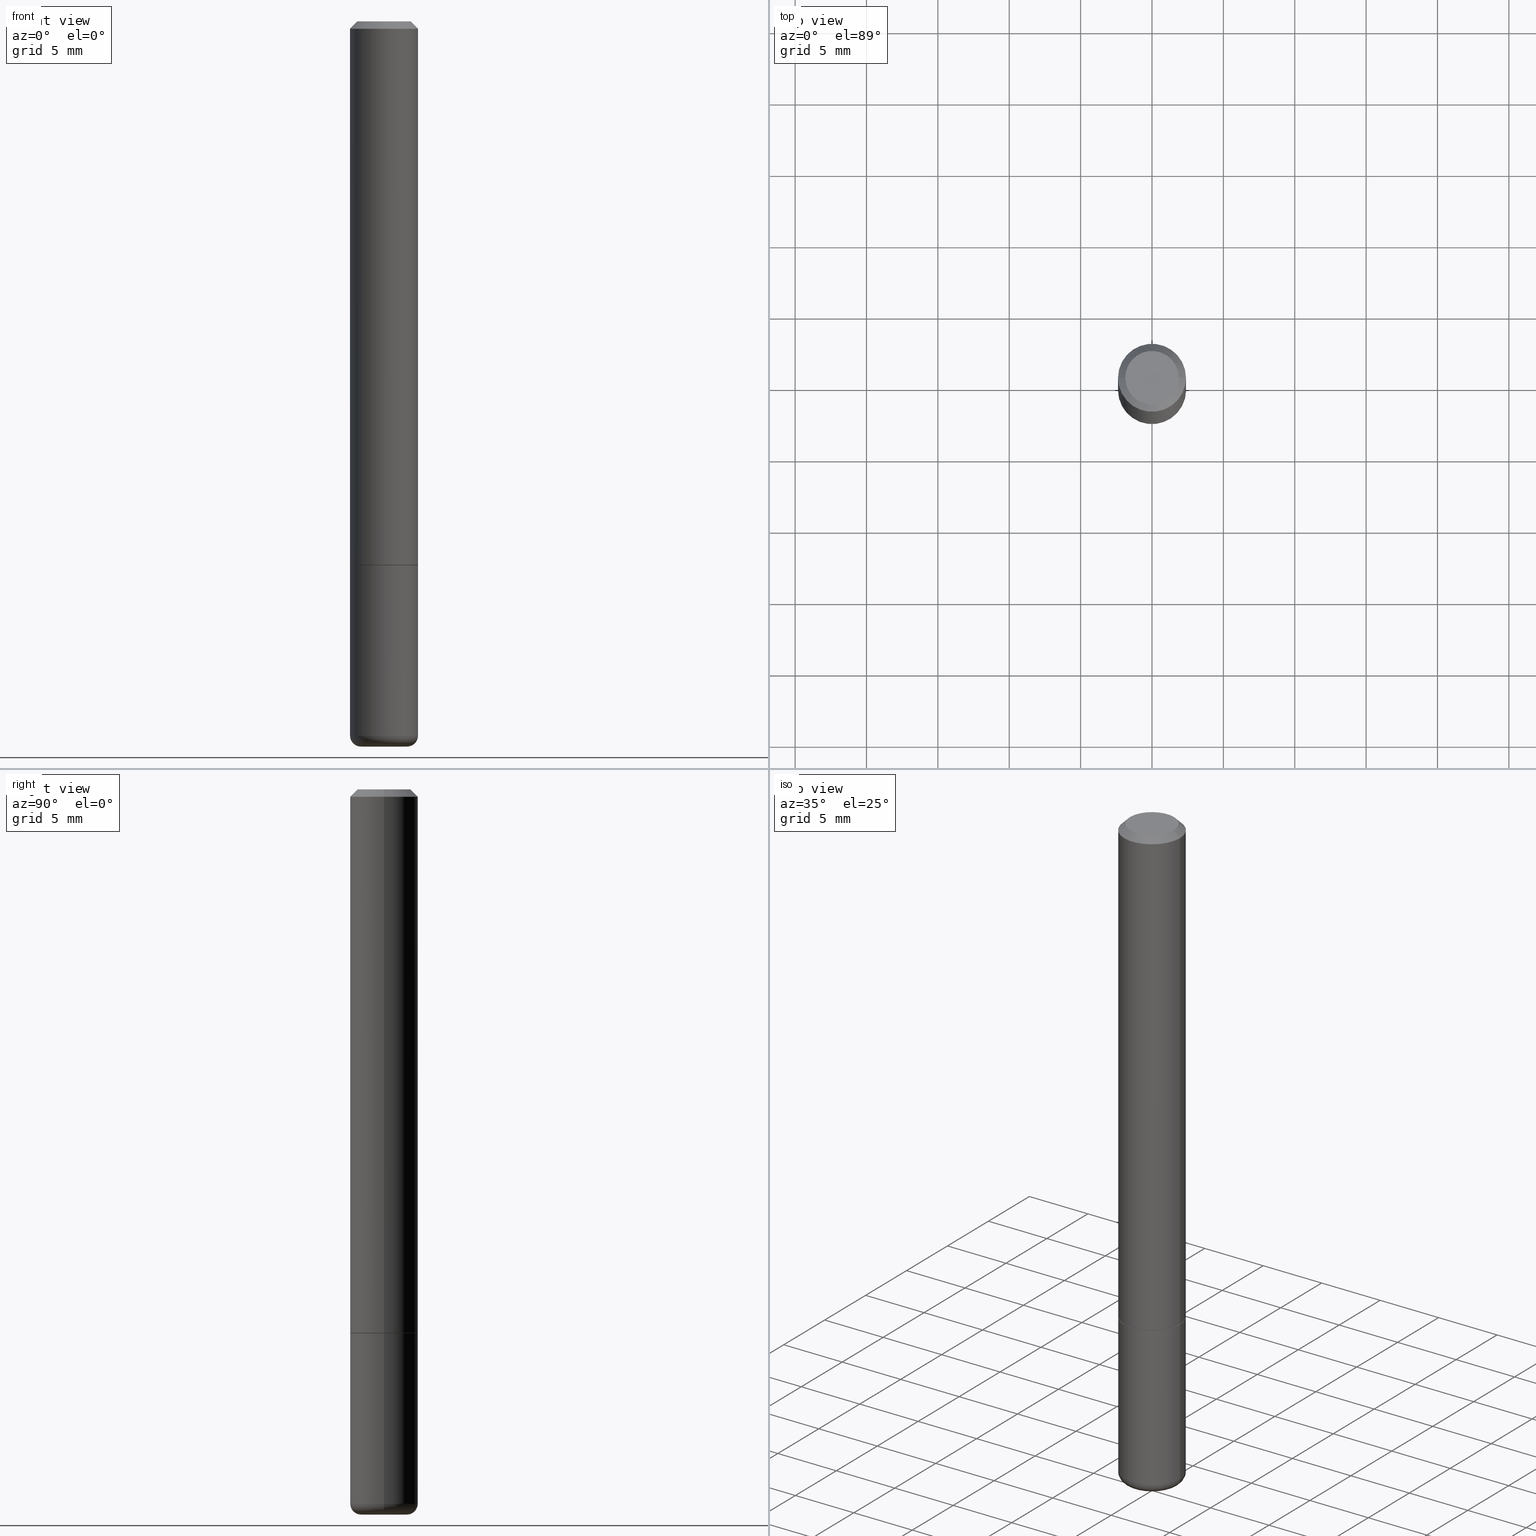
[diagram: canonical four-view strip — front | top / right | iso, engineering-drawing reading convention]
A machine part, canonical four-view strip (front | top / right | iso — engineering-drawing reading convention). The complete STEP part file that produces these views, byte-faithful:
ISO-10303-21;
HEADER;
FILE_DESCRIPTION (( 'STEP AP203' ),
    '1' );
FILE_NAME ('38785.STEP',
    '2024-03-03T12:43:36',
    ( '' ),
    ( '' ),
    'SwSTEP 2.0',
    'SolidWorks 2023',
    '' );
FILE_SCHEMA (( 'CONFIG_CONTROL_DESIGN' ));
ENDSEC;

DATA;
#1 = AXIS2_PLACEMENT_3D ( 'NONE', #287, #105, #201 ) ;
#2 = ORIENTED_EDGE ( 'NONE', *, *, #139, .F. ) ;
#3 = DIRECTION ( 'NONE',  ( -1.000000000000000000, 7.105427357600993970E-15, 0.000000000000000000 ) ) ;
#4 = LINE ( 'NONE', #136, #251 ) ;
#5 = ADVANCED_FACE ( 'NONE', ( #322 ), #161, .F. ) ;
#6 = AXIS2_PLACEMENT_3D ( 'NONE', #22, #363, #183 ) ;
#7 = CARTESIAN_POINT ( 'NONE',  ( -0.06375000000000000111, -6.371038053192565679E-15, -1.999999999999999778 ) ) ;
#8 = SECURITY_CLASSIFICATION ( '', '', #361 ) ;
#9 = CARTESIAN_POINT ( 'NONE',  ( 4.890937612370276662E-31, -6.982962677686296539E-17, -0.02000000000000001776 ) ) ;
#10 = ADVANCED_FACE ( 'NONE', ( #97 ), #396, .T. ) ;
#11 = CARTESIAN_POINT ( 'NONE',  ( 3.668203209277704335E-29, -5.237222008264717388E-15, -1.499999999999999778 ) ) ;
#12 = DIRECTION ( 'NONE',  ( 0.000000000000000000, 0.000000000000000000, 1.000000000000000000 ) ) ;
#13 = CIRCLE ( 'NONE', #49, 0.09375000000000020817 ) ;
#14 = CONICAL_SURFACE ( 'NONE', #78, 0.09274999999999998523, 0.7853981633975251064 ) ;
#15 = DIRECTION ( 'NONE',  ( -2.445468806185136597E-29, 3.491481338843145583E-15, 1.000000000000000000 ) ) ;
#16 =( NAMED_UNIT ( * ) PLANE_ANGLE_UNIT ( ) SI_UNIT ( $, .RADIAN. ) );
#17 = PERSON_AND_ORGANIZATION ( #314, #250 ) ;
#18 = FACE_OUTER_BOUND ( 'NONE', #135, .T. ) ;
#19 = CC_DESIGN_APPROVAL ( #406, ( #41 ) ) ;
#20 = DIRECTION ( 'NONE',  ( 0.7071067811865465735, -7.319954787623252890E-15, -0.7071067811865484609 ) ) ;
#21 = DIRECTION ( 'NONE',  ( 1.000000000000000000, -6.982962677686261189E-15, 0.000000000000000000 ) ) ;
#22 = CARTESIAN_POINT ( 'NONE',  ( 4.817573548184719118E-29, -6.878218237520997007E-15, -1.969999999999999973 ) ) ;
#23 = ORIENTED_EDGE ( 'NONE', *, *, #331, .F. ) ;
#24 = VERTEX_POINT ( 'NONE', #102 ) ;
#25 = CARTESIAN_POINT ( 'NONE',  ( 0.09375000000000020817, -5.888383277958964251E-15, -1.498999999999999666 ) ) ;
#26 = CIRCLE ( 'NONE', #209, 0.02999999999999984970 ) ;
#27 = ORIENTED_EDGE ( 'NONE', *, *, #351, .F. ) ;
#28 = ORIENTED_EDGE ( 'NONE', *, *, #298, .F. ) ;
#29 = DATE_AND_TIME ( #342, #85 ) ;
#30 = EDGE_LOOP ( 'NONE', ( #131, #123, #162, #380 ) ) ;
#31 = ORIENTED_EDGE ( 'NONE', *, *, #385, .F. ) ;
#32 = PERSON_AND_ORGANIZATION ( #314, #250 ) ;
#33 = ORIENTED_EDGE ( 'NONE', *, *, #374, .T. ) ;
#34 = FACE_OUTER_BOUND ( 'NONE', #130, .T. ) ;
#35 = APPROVAL_DATE_TIME ( #134, #224 ) ;
#36 = AXIS2_PLACEMENT_3D ( 'NONE', #91, #238, #367 ) ;
#37 = ORIENTED_EDGE ( 'NONE', *, *, #374, .F. ) ;
#38 = CC_DESIGN_APPROVAL ( #266, ( #8 ) ) ;
#39 = DIRECTION ( 'NONE',  ( -0.7071067811865465735, 2.468850131082246805E-15, -0.7071067811865484609 ) ) ;
#40 = PERSON_AND_ORGANIZATION ( #314, #250 ) ;
#41 = PRODUCT_DEFINITION ( 'UNKNOWN', '', #180, #390 ) ;
#42 = CALENDAR_DATE ( 2024, 3, 3 ) ;
#43 = COORDINATED_UNIVERSAL_TIME_OFFSET ( 5, 0, .BEHIND. ) ;
#44 = CARTESIAN_POINT ( 'NONE',  ( -0.09375000000000001388, 6.661338147750940229E-16, -4.611501647113973995E-30 ) ) ;
#45 = EDGE_CURVE ( 'NONE', #196, #249, #100, .T. ) ;
#46 = APPROVAL_STATUS ( 'not_yet_approved' ) ;
#47 = ORIENTED_EDGE ( 'NONE', *, *, #418, .T. ) ;
#48 = DIRECTION ( 'NONE',  ( 1.000000000000000000, -6.982962677686265922E-15, 4.878439923190939118E-29 ) ) ;
#49 = AXIS2_PLACEMENT_3D ( 'NONE', #411, #51, #373 ) ;
#50 = CIRCLE ( 'NONE', #101, 0.09274999999999998523 ) ;
#51 = DIRECTION ( 'NONE',  ( -2.445468806185136597E-29, 3.491481338843145583E-15, 1.000000000000000000 ) ) ;
#52 = EDGE_LOOP ( 'NONE', ( #284, #103 ) ) ;
#53 = CARTESIAN_POINT ( 'NONE',  ( -0.09274999999999998523, -4.572895166499002070E-15, -1.499999999999999778 ) ) ;
#54 = DIRECTION ( 'NONE',  ( 1.000000000000000000, -6.982962677686261189E-15, 0.000000000000000000 ) ) ;
#55 = ORIENTED_EDGE ( 'NONE', *, *, #184, .F. ) ;
#56 = LENGTH_MEASURE_WITH_UNIT ( LENGTH_MEASURE( 0.02539999999999999897 ), #399 );
#57 = DIRECTION ( 'NONE',  ( -2.445468806185136597E-29, 3.491481338843145583E-15, 1.000000000000000000 ) ) ;
#58 = VERTEX_POINT ( 'NONE', #317 ) ;
#59 = CC_DESIGN_PERSON_AND_ORGANIZATION_ASSIGNMENT ( #32, #372, ( #41 ) ) ;
#60 = CARTESIAN_POINT ( 'NONE',  ( 0.000000000000000000, 0.000000000000000000, 0.000000000000000000 ) ) ;
#61 = ADVANCED_FACE ( 'NONE', ( #34 ), #232, .T. ) ;
#62 = CIRCLE ( 'NONE', #116, 0.09375000000000001388 ) ;
#63 = ORIENTED_EDGE ( 'NONE', *, *, #298, .T. ) ;
#64 = CARTESIAN_POINT ( 'NONE',  ( -0.09274999999999998523, -4.578193620847224472E-15, -1.499999999999999778 ) ) ;
#65 = DIRECTION ( 'NONE',  ( -2.445468806185136597E-29, 3.491481338843145583E-15, 1.000000000000000000 ) ) ;
#66 = EDGE_CURVE ( 'NONE', #249, #196, #376, .T. ) ;
#67 = DIRECTION ( 'NONE',  ( -2.445468806185136597E-29, 3.491481338843145583E-15, 1.000000000000000000 ) ) ;
#68 = ORIENTED_EDGE ( 'NONE', *, *, #294, .F. ) ;
#69 = EDGE_CURVE ( 'NONE', #338, #249, #292, .T. ) ;
#70 = CONICAL_SURFACE ( 'NONE', #125, 0.09274999999999998523, 0.7853981633975251064 ) ;
#71 = CIRCLE ( 'NONE', #112, 0.09375000000000001388 ) ;
#72 = FACE_OUTER_BOUND ( 'NONE', #128, .T. ) ;
#73 = EDGE_LOOP ( 'NONE', ( #382, #163, #47, #304 ) ) ;
#74 = DIRECTION ( 'NONE',  ( -1.000000000000000000, 6.982962677686265922E-15, -4.876176775795935793E-29 ) ) ;
#75 = DIRECTION ( 'NONE',  ( -2.445468806185136597E-29, 3.491481338843145583E-15, 1.000000000000000000 ) ) ;
#76 = CONICAL_SURFACE ( 'NONE', #215, 0.09375000000000001388, 0.7853981633974469467 ) ;
#77 = CARTESIAN_POINT ( 'NONE',  ( -0.09375000000000001388, 5.848231242562245017E-16, -0.02000000000000001776 ) ) ;
#78 = AXIS2_PLACEMENT_3D ( 'NONE', #391, #205, #108 ) ;
#79 = DIRECTION ( 'NONE',  ( -2.445468806185136597E-29, 3.491481338843145583E-15, 1.000000000000000000 ) ) ;
#80 = ADVANCED_FACE ( 'NONE', ( #208 ), #76, .T. ) ;
#81 = CARTESIAN_POINT ( 'NONE',  ( 4.890937612370272633E-29, -6.982962677686290376E-15, -1.999999999999999778 ) ) ;
#82 = EDGE_CURVE ( 'NONE', #409, #218, #173, .T. ) ;
#83 = LINE ( 'NONE', #330, #309 ) ;
#84 = VECTOR ( 'NONE', #332, 39.37007874015748143 ) ;
#85 = LOCAL_TIME ( 7, 43, 36.00000000000000000, #347 ) ;
#86 = LINE ( 'NONE', #64, #359 ) ;
#87 = EDGE_LOOP ( 'NONE', ( #256, #95 ) ) ;
#88 = DIRECTION ( 'NONE',  ( 1.000000000000000000, -6.982962677686260400E-15, 0.000000000000000000 ) ) ;
#89 = CC_DESIGN_PERSON_AND_ORGANIZATION_ASSIGNMENT ( #124, #94, ( #415 ) ) ;
#90 = DIRECTION ( 'NONE',  ( -2.445468806185136597E-29, 3.491481338843145583E-15, 1.000000000000000000 ) ) ;
#91 = CARTESIAN_POINT ( 'NONE',  ( 3.668203209277704335E-29, -5.237222008264717388E-15, -1.499999999999999778 ) ) ;
#92 = AXIS2_PLACEMENT_3D ( 'NONE', #11, #327, #147 ) ;
#93 = CIRCLE ( 'NONE', #348, 0.07375000000000006550 ) ;
#94 = PERSON_AND_ORGANIZATION_ROLE ( 'design_owner' ) ;
#95 = ORIENTED_EDGE ( 'NONE', *, *, #146, .F. ) ;
#96 = ORIENTED_EDGE ( 'NONE', *, *, #247, .T. ) ;
#97 = FACE_OUTER_BOUND ( 'NONE', #129, .T. ) ;
#98 = APPROVAL_STATUS ( 'not_yet_approved' ) ;
#99 = ORIENTED_EDGE ( 'NONE', *, *, #45, .T. ) ;
#100 = CIRCLE ( 'NONE', #203, 0.09375000000000001388 ) ;
#101 = AXIS2_PLACEMENT_3D ( 'NONE', #261, #142, #138 ) ;
#102 = CARTESIAN_POINT ( 'NONE',  ( -0.09375000000000001388, 5.848231242562245017E-16, -0.02000000000000001776 ) ) ;
#103 = ORIENTED_EDGE ( 'NONE', *, *, #400, .T. ) ;
#104 = PRODUCT_DEFINITION_SHAPE ( 'NONE', 'NONE',  #41 ) ;
#105 = DIRECTION ( 'NONE',  ( 2.438088387897960049E-29, -3.491481338843145188E-15, -1.000000000000000000 ) ) ;
#106 = CIRCLE ( 'NONE', #355, 0.09375000000000001388 ) ;
#107 = APPROVAL_STATUS ( 'not_yet_approved' ) ;
#108 = DIRECTION ( 'NONE',  ( 1.000000000000000000, -6.982962677686262766E-15, 0.000000000000000000 ) ) ;
#109 = DIRECTION ( 'NONE',  ( 2.438088387897960049E-29, -3.491481338843145188E-15, -1.000000000000000000 ) ) ;
#110 = CC_DESIGN_PERSON_AND_ORGANIZATION_ASSIGNMENT ( #17, #265, ( #180 ) ) ;
#111 = FACE_OUTER_BOUND ( 'NONE', #30, .T. ) ;
#112 = AXIS2_PLACEMENT_3D ( 'NONE', #187, #303, #21 ) ;
#113 = CARTESIAN_POINT ( 'NONE',  ( 4.890937612370276662E-31, -6.982962677686296539E-17, -0.02000000000000001776 ) ) ;
#114 = DIRECTION ( 'NONE',  ( 1.000000000000000000, -6.982962677686262766E-15, 0.000000000000000000 ) ) ;
#115 = COORDINATED_UNIVERSAL_TIME_OFFSET ( 5, 0, .BEHIND. ) ;
#116 = AXIS2_PLACEMENT_3D ( 'NONE', #188, #57, #54 ) ;
#117 = CARTESIAN_POINT ( 'NONE',  ( -0.09375000000000011102, 6.661338147750947131E-16, -4.611501647113979600E-30 ) ) ;
#118 = ADVANCED_FACE ( 'NONE', ( #120 ), #70, .T. ) ;
#119 = CARTESIAN_POINT ( 'NONE',  ( 4.890937612370272633E-29, -6.982962677686290376E-15, -1.999999999999999778 ) ) ;
#120 = FACE_OUTER_BOUND ( 'NONE', #73, .T. ) ;
#121 = CYLINDRICAL_SURFACE ( 'NONE', #200, 0.09375000000000011102 ) ;
#122 = CARTESIAN_POINT ( 'NONE',  ( -0.07375000000000006550, 5.499083108677936415E-16, -2.134256245050577883E-17 ) ) ;
#123 = ORIENTED_EDGE ( 'NONE', *, *, #192, .T. ) ;
#124 = PERSON_AND_ORGANIZATION ( #314, #250 ) ;
#125 = AXIS2_PLACEMENT_3D ( 'NONE', #150, #236, #114 ) ;
#126 = CIRCLE ( 'NONE', #282, 0.02999999999999984970 ) ;
#127 = VERTEX_POINT ( 'NONE', #53 ) ;
#128 = EDGE_LOOP ( 'NONE', ( #253, #99 ) ) ;
#129 = EDGE_LOOP ( 'NONE', ( #28, #383, #33, #68 ) ) ;
#130 = EDGE_LOOP ( 'NONE', ( #308, #168, #379, #381 ) ) ;
#131 = ORIENTED_EDGE ( 'NONE', *, *, #184, .T. ) ;
#132 = CIRCLE ( 'NONE', #36, 0.09274999999999998523 ) ;
#133 = VECTOR ( 'NONE', #176, 39.37007874015748143 ) ;
#134 = DATE_AND_TIME ( #174, #222 ) ;
#135 = EDGE_LOOP ( 'NONE', ( #283, #375, #96, #2 ) ) ;
#136 = CARTESIAN_POINT ( 'NONE',  ( 0.09375000000000001388, -7.130013140679441850E-16, -0.02000000000000001776 ) ) ;
#137 = CARTESIAN_POINT ( 'NONE',  ( 3.665757740471518732E-29, -5.233730526925875170E-15, -1.498999999999999666 ) ) ;
#138 = DIRECTION ( 'NONE',  ( 1.000000000000000000, -6.982962677686262766E-15, 0.000000000000000000 ) ) ;
#139 = EDGE_CURVE ( 'NONE', #24, #306, #307, .T. ) ;
#140 = CONICAL_SURFACE ( 'NONE', #364, 0.09375000000000001388, 0.7853981633974469467 ) ;
#141 = CIRCLE ( 'NONE', #365, 0.07375000000000006550 ) ;
#142 = DIRECTION ( 'NONE',  ( -2.445468806185136597E-29, 3.491481338843145583E-15, 1.000000000000000000 ) ) ;
#143 = CC_DESIGN_PERSON_AND_ORGANIZATION_ASSIGNMENT ( #394, #401, ( #8 ) ) ;
#144 = LINE ( 'NONE', #77, #404 ) ;
#145 = PERSON_AND_ORGANIZATION_ROLE ( 'creator' ) ;
#146 = EDGE_CURVE ( 'NONE', #305, #58, #301, .T. ) ;
#147 = DIRECTION ( 'NONE',  ( 1.000000000000000000, -6.982962677686261189E-15, 0.000000000000000000 ) ) ;
#148 = PLANE ( 'NONE',  #175 ) ;
#149 = DIRECTION ( 'NONE',  ( 1.000000000000000000, -6.982962677686271444E-15, 0.000000000000000000 ) ) ;
#150 = CARTESIAN_POINT ( 'NONE',  ( 3.668203209277704335E-29, -5.237222008264717388E-15, -1.499999999999999778 ) ) ;
#151 = CARTESIAN_POINT ( 'NONE',  ( 0.06375000000000000111, -7.323382108223495405E-15, -1.969999999999999973 ) ) ;
#152 = CARTESIAN_POINT ( 'NONE',  ( -0.09374999999999991673, -6.212084422745903871E-15, -1.969999999999999973 ) ) ;
#153 = CARTESIAN_POINT ( 'NONE',  ( -0.09375000000000001388, -5.391586308117763273E-15, -1.499999999999999778 ) ) ;
#154 = DIRECTION ( 'NONE',  ( 1.000000000000000000, -6.982962677686265922E-15, 4.878439923190939118E-29 ) ) ;
#155 = PRODUCT_RELATED_PRODUCT_CATEGORY ( 'detail', '', ( #415 ) ) ;
#156 = DIRECTION ( 'NONE',  ( 1.000000000000000000, -6.982962677686260400E-15, 0.000000000000000000 ) ) ;
#157 = CARTESIAN_POINT ( 'NONE',  ( -0.06375000000000000111, -6.425247243473933328E-15, -1.969999999999999973 ) ) ;
#158 = EDGE_CURVE ( 'NONE', #409, #24, #248, .T. ) ;
#159 = CC_DESIGN_DATE_AND_TIME_ASSIGNMENT ( #405, #245, ( #8 ) ) ;
#160 = VECTOR ( 'NONE', #334, 39.37007874015748143 ) ;
#161 = PLANE ( 'NONE',  #259 ) ;
#162 = ORIENTED_EDGE ( 'NONE', *, *, #171, .F. ) ;
#163 = ORIENTED_EDGE ( 'NONE', *, *, #310, .T. ) ;
#164 = APPROVAL_DATE_TIME ( #29, #406 ) ;
#165 = ORIENTED_EDGE ( 'NONE', *, *, #45, .F. ) ;
#166 = CARTESIAN_POINT ( 'NONE',  ( 3.668203209277704335E-29, -5.237222008264717388E-15, -1.499999999999999778 ) ) ;
#167 = EDGE_CURVE ( 'NONE', #306, #24, #106, .T. ) ;
#168 = ORIENTED_EDGE ( 'NONE', *, *, #331, .T. ) ;
#169 = PERSON_AND_ORGANIZATION ( #314, #250 ) ;
#170 = PLANE ( 'NONE',  #1 ) ;
#171 = EDGE_CURVE ( 'NONE', #218, #409, #13, .T. ) ;
#172 = FACE_OUTER_BOUND ( 'NONE', #297, .T. ) ;
#173 = CIRCLE ( 'NONE', #229, 0.09375000000000020817 ) ;
#174 = CALENDAR_DATE ( 2024, 3, 3 ) ;
#175 = AXIS2_PLACEMENT_3D ( 'NONE', #360, #362, #242 ) ;
#176 = DIRECTION ( 'NONE',  ( -2.445468806185136877E-29, 3.491481338843145188E-15, 1.000000000000000000 ) ) ;
#177 = APPROVAL_ROLE ( '' ) ;
#178 = DATE_AND_TIME ( #42, #339 ) ;
#179 = CLOSED_SHELL ( 'NONE', ( #61, #233, #325, #341, #10, #393 ) ) ;
#180 = PRODUCT_DEFINITION_FORMATION_WITH_SPECIFIED_SOURCE ( 'ANY', '', #415, .NOT_KNOWN. ) ;
#181 = CARTESIAN_POINT ( 'NONE',  ( 5.219257071676098903E-46, -7.451715851902235727E-32, -2.134256245050205639E-17 ) ) ;
#182 = DIRECTION ( 'NONE',  ( -2.445468806185136597E-29, 3.491481338843145583E-15, 1.000000000000000000 ) ) ;
#183 = DIRECTION ( 'NONE',  ( 1.000000000000000000, -6.982962677686263555E-15, 4.883557194083111219E-29 ) ) ;
#184 = EDGE_CURVE ( 'NONE', #258, #127, #132, .T. ) ;
#185 = DIRECTION ( 'NONE',  ( -6.982962677686266711E-15, -1.000000000000000000, 3.491481338843145583E-15 ) ) ;
#186 = DIRECTION ( 'NONE',  ( -2.445468806185136597E-29, 3.491481338843145583E-15, 1.000000000000000000 ) ) ;
#187 = CARTESIAN_POINT ( 'NONE',  ( 4.817573548184719118E-29, -6.878218237520997007E-15, -1.969999999999999973 ) ) ;
#188 = CARTESIAN_POINT ( 'NONE',  ( 4.817573548184719118E-29, -6.878218237520997007E-15, -1.969999999999999973 ) ) ;
#189 = TOROIDAL_SURFACE ( 'NONE', #6, 0.06375000000000000111, 0.02999999999999984276 ) ;
#190 = APPROVAL_PERSON_ORGANIZATION ( #40, #224, #356 ) ;
#191 = DIRECTION ( 'NONE',  ( -2.438088387897960049E-29, 3.491481338843145188E-15, 1.000000000000000000 ) ) ;
#192 = EDGE_CURVE ( 'NONE', #127, #409, #86, .T. ) ;
#193 = ORIENTED_EDGE ( 'NONE', *, *, #315, .T. ) ;
#194 = DIMENSIONAL_EXPONENTS ( 1.000000000000000000, 0.000000000000000000, 0.000000000000000000, 0.000000000000000000, 0.000000000000000000, 0.000000000000000000, 0.000000000000000000 ) ;
#195 = DIRECTION ( 'NONE',  ( 7.105427357601001859E-15, 1.000000000000000000, -3.491481338843145583E-15 ) ) ;
#196 = VERTEX_POINT ( 'NONE', #153 ) ;
#197 = DIRECTION ( 'NONE',  ( 1.000000000000000000, -6.982962677686261189E-15, 0.000000000000000000 ) ) ;
#198 = APPLICATION_CONTEXT ( 'configuration controlled 3d designs of mechanical parts and assemblies' ) ;
#199 = ORIENTED_EDGE ( 'NONE', *, *, #247, .F. ) ;
#200 = AXIS2_PLACEMENT_3D ( 'NONE', #370, #90, #213 ) ;
#201 = DIRECTION ( 'NONE',  ( -1.000000000000000000, 6.982962677686265922E-15, -4.876176775795935793E-29 ) ) ;
#202 = DIRECTION ( 'NONE',  ( 1.000000000000000000, -6.982962677686265922E-15, 4.876176775795935793E-29 ) ) ;
#203 = AXIS2_PLACEMENT_3D ( 'NONE', #352, #65, #197 ) ;
#204 =( GEOMETRIC_REPRESENTATION_CONTEXT ( 3 ) GLOBAL_UNCERTAINTY_ASSIGNED_CONTEXT ( ( #225 ) ) GLOBAL_UNIT_ASSIGNED_CONTEXT ( ( #280, #16, #299 ) ) REPRESENTATION_CONTEXT ( 'NONE', 'WORKASPACE' ) );
#205 = DIRECTION ( 'NONE',  ( -2.445468806185136597E-29, 3.491481338843145583E-15, 1.000000000000000000 ) ) ;
#206 = CC_DESIGN_DATE_AND_TIME_ASSIGNMENT ( #357, #323, ( #41 ) ) ;
#207 = DIRECTION ( 'NONE',  ( -2.445468806185136597E-29, 3.491481338843145583E-15, 1.000000000000000000 ) ) ;
#208 = FACE_OUTER_BOUND ( 'NONE', #387, .T. ) ;
#209 = AXIS2_PLACEMENT_3D ( 'NONE', #157, #195, #3 ) ;
#210 = DIRECTION ( 'NONE',  ( 1.000000000000000000, -6.982962677686265922E-15, 4.876176775795935793E-29 ) ) ;
#211 = CARTESIAN_POINT ( 'NONE',  ( -0.09375000000000020817, -1.985646262076270971E-15, -1.498999999999999666 ) ) ;
#212 = EDGE_LOOP ( 'NONE', ( #286, #344, #276, #199 ) ) ;
#213 = DIRECTION ( 'NONE',  ( 1.000000000000000000, -6.982962677686265922E-15, 4.876176775795935793E-29 ) ) ;
#214 = ADVANCED_FACE ( 'NONE', ( #417 ), #170, .F. ) ;
#215 = AXIS2_PLACEMENT_3D ( 'NONE', #113, #235, #296 ) ;
#216 = AXIS2_PLACEMENT_3D ( 'NONE', #119, #237, #88 ) ;
#217 = SHAPE_DEFINITION_REPRESENTATION ( #104, #263 ) ;
#218 = VERTEX_POINT ( 'NONE', #25 ) ;
#219 = ORIENTED_EDGE ( 'NONE', *, *, #351, .T. ) ;
#220 = PERSON_AND_ORGANIZATION ( #314, #250 ) ;
#221 = ADVANCED_FACE ( 'NONE', ( #172 ), #140, .T. ) ;
#222 = LOCAL_TIME ( 7, 43, 36.00000000000000000, #358 ) ;
#223 = DIRECTION ( 'NONE',  ( 1.000000000000000000, -6.982962677686263555E-15, 4.883557194083111219E-29 ) ) ;
#224 = APPROVAL ( #107, 'UNSPECIFIED' ) ;
#225 = UNCERTAINTY_MEASURE_WITH_UNIT (LENGTH_MEASURE( 1.000000000000000082E-05 ), #280, 'distance_accuracy_value', 'NONE');
#226 = EDGE_LOOP ( 'NONE', ( #23, #350, #371, #165 ) ) ;
#227 = DIRECTION ( 'NONE',  ( -0.7071067811866017516, 7.493145998870549798E-15, 0.7071067811864931718 ) ) ;
#228 = CARTESIAN_POINT ( 'NONE',  ( 0.07375000000000006550, -6.094815207017975989E-16, -2.134256245049812442E-17 ) ) ;
#229 = AXIS2_PLACEMENT_3D ( 'NONE', #137, #182, #273 ) ;
#230 = VERTEX_POINT ( 'NONE', #122 ) ;
#231 = APPROVAL_PERSON_ORGANIZATION ( #220, #406, #345 ) ;
#232 = CYLINDRICAL_SURFACE ( 'NONE', #384, 0.09375000000000001388 ) ;
#233 = ADVANCED_FACE ( 'NONE', ( #244 ), #189, .T. ) ;
#234 = CARTESIAN_POINT ( 'NONE',  ( 0.000000000000000000, 0.000000000000000000, 0.000000000000000000 ) ) ;
#235 = DIRECTION ( 'NONE',  ( 2.445468806185136597E-29, -3.491481338843145583E-15, -1.000000000000000000 ) ) ;
#236 = DIRECTION ( 'NONE',  ( -2.445468806185136597E-29, 3.491481338843145583E-15, 1.000000000000000000 ) ) ;
#237 = DIRECTION ( 'NONE',  ( -2.445468806185136597E-29, 3.491481338843145583E-15, 1.000000000000000000 ) ) ;
#238 = DIRECTION ( 'NONE',  ( -2.445468806185136597E-29, 3.491481338843145583E-15, 1.000000000000000000 ) ) ;
#239 = CARTESIAN_POINT ( 'NONE',  ( 0.09375000000000001388, -5.891874759297804892E-15, -1.499999999999999778 ) ) ;
#240 = CC_DESIGN_PERSON_AND_ORGANIZATION_ASSIGNMENT ( #169, #145, ( #180 ) ) ;
#241 = LOCAL_TIME ( 7, 43, 36.00000000000000000, #115 ) ;
#242 = DIRECTION ( 'NONE',  ( -1.000000000000000000, 6.982962677686265922E-15, -4.876176775795935793E-29 ) ) ;
#243 = DIRECTION ( 'NONE',  ( -2.445468806185136597E-29, 3.491481338843145583E-15, 1.000000000000000000 ) ) ;
#244 = FACE_OUTER_BOUND ( 'NONE', #353, .T. ) ;
#245 = DATE_TIME_ROLE ( 'classification_date' ) ;
#246 = DIRECTION ( 'NONE',  ( 0.7071067811866017516, -2.468850131082825040E-15, 0.7071067811864931718 ) ) ;
#247 = EDGE_CURVE ( 'NONE', #218, #306, #340, .T. ) ;
#248 = LINE ( 'NONE', #117, #84 ) ;
#249 = VERTEX_POINT ( 'NONE', #239 ) ;
#250 = ORGANIZATION ( 'UNSPECIFIED', 'UNSPECIFIED', '' ) ;
#251 = VECTOR ( 'NONE', #20, 39.37007874015748143 ) ;
#252 = DIRECTION ( 'NONE',  ( -1.000000000000000000, 6.982962677686265922E-15, 0.000000000000000000 ) ) ;
#253 = ORIENTED_EDGE ( 'NONE', *, *, #66, .T. ) ;
#254 = DIRECTION ( 'NONE',  ( 1.000000000000000000, 0.000000000000000000, 0.000000000000000000 ) ) ;
#255 = VERTEX_POINT ( 'NONE', #152 ) ;
#256 = ORIENTED_EDGE ( 'NONE', *, *, #410, .F. ) ;
#257 = ADVANCED_FACE ( 'NONE', ( #18 ), #278, .T. ) ;
#258 = VERTEX_POINT ( 'NONE', #337 ) ;
#259 = AXIS2_PLACEMENT_3D ( 'NONE', #166, #191, #349 ) ;
#260 = LOCAL_TIME ( 7, 43, 36.00000000000000000, #288 ) ;
#261 = CARTESIAN_POINT ( 'NONE',  ( 3.668203209277704335E-29, -5.237222008264717388E-15, -1.499999999999999778 ) ) ;
#262 = CIRCLE ( 'NONE', #216, 0.06375000000000000111 ) ;
#263 = ADVANCED_BREP_SHAPE_REPRESENTATION ( '38785', ( #407, #268, #328 ), #204 ) ;
#264 = FACE_OUTER_BOUND ( 'NONE', #226, .T. ) ;
#265 = PERSON_AND_ORGANIZATION_ROLE ( 'design_supplier' ) ;
#266 = APPROVAL ( #46, 'UNSPECIFIED' ) ;
#267 = PLANE ( 'NONE',  #290 ) ;
#268 = MANIFOLD_SOLID_BREP ( 'Body-Move/Copy2[2]', #413 ) ;
#269 = CARTESIAN_POINT ( 'NONE',  ( 0.09375000000000001388, -6.546527510330875041E-16, 4.571415727308690506E-30 ) ) ;
#270 = VECTOR ( 'NONE', #397, 39.37007874015748143 ) ;
#271 = AXIS2_PLACEMENT_3D ( 'NONE', #234, #67, #320 ) ;
#272 = CARTESIAN_POINT ( 'NONE',  ( 0.000000000000000000, 0.000000000000000000, 0.000000000000000000 ) ) ;
#273 = DIRECTION ( 'NONE',  ( 1.000000000000000000, -6.982962677686268288E-15, 0.000000000000000000 ) ) ;
#274 = CARTESIAN_POINT ( 'NONE',  ( 5.219257071676098903E-46, -7.451715851902235727E-32, -2.134256245050205639E-17 ) ) ;
#275 = CARTESIAN_POINT ( 'NONE',  ( 4.890937612370276662E-31, -6.982962677686296539E-17, -0.02000000000000001776 ) ) ;
#276 = ORIENTED_EDGE ( 'NONE', *, *, #167, .F. ) ;
#277 = APPLICATION_PROTOCOL_DEFINITION ( 'international standard', 'config_control_design', 1994, #198 ) ;
#278 = CYLINDRICAL_SURFACE ( 'NONE', #289, 0.09375000000000011102 ) ;
#279 = EDGE_CURVE ( 'NONE', #338, #255, #62, .T. ) ;
#280 =( CONVERSION_BASED_UNIT ( 'INCH', #56 ) LENGTH_UNIT ( ) NAMED_UNIT ( #194 ) );
#281 = DIRECTION ( 'NONE',  ( 1.000000000000000000, -6.982962677686265922E-15, 0.000000000000000000 ) ) ;
#282 = AXIS2_PLACEMENT_3D ( 'NONE', #151, #185, #149 ) ;
#283 = ORIENTED_EDGE ( 'NONE', *, *, #158, .F. ) ;
#284 = ORIENTED_EDGE ( 'NONE', *, *, #385, .T. ) ;
#285 = ADVANCED_FACE ( 'NONE', ( #408 ), #121, .T. ) ;
#286 = ORIENTED_EDGE ( 'NONE', *, *, #171, .T. ) ;
#287 = CARTESIAN_POINT ( 'NONE',  ( 5.149934974793625841E-16, 0.07375000000000006550, -2.681680299649332462E-16 ) ) ;
#288 = COORDINATED_UNIVERSAL_TIME_OFFSET ( 5, 0, .BEHIND. ) ;
#289 = AXIS2_PLACEMENT_3D ( 'NONE', #60, #368, #210 ) ;
#290 = AXIS2_PLACEMENT_3D ( 'NONE', #324, #109, #74 ) ;
#291 = CARTESIAN_POINT ( 'NONE',  ( 0.09374999999999991673, -7.532870988554083722E-15, -1.969999999999999973 ) ) ;
#292 = LINE ( 'NONE', #269, #270 ) ;
#293 = DIRECTION ( 'NONE',  ( 2.445468806185136597E-29, -3.491481338843145583E-15, -1.000000000000000000 ) ) ;
#294 = EDGE_CURVE ( 'NONE', #255, #338, #71, .T. ) ;
#295 = APPROVAL_DATE_TIME ( #178, #266 ) ;
#296 = DIRECTION ( 'NONE',  ( -1.000000000000000000, 6.982962677686265922E-15, 0.000000000000000000 ) ) ;
#297 = EDGE_LOOP ( 'NONE', ( #354, #219, #343, #369 ) ) ;
#298 = EDGE_CURVE ( 'NONE', #305, #255, #26, .T. ) ;
#299 =( NAMED_UNIT ( * ) SI_UNIT ( $, .STERADIAN. ) SOLID_ANGLE_UNIT ( ) );
#300 = FACE_OUTER_BOUND ( 'NONE', #87, .T. ) ;
#301 = CIRCLE ( 'NONE', #403, 0.06375000000000000111 ) ;
#302 = APPROVAL_PERSON_ORGANIZATION ( #329, #266, #177 ) ;
#303 = DIRECTION ( 'NONE',  ( -2.445468806185136597E-29, 3.491481338843145583E-15, 1.000000000000000000 ) ) ;
#304 = ORIENTED_EDGE ( 'NONE', *, *, #82, .F. ) ;
#305 = VERTEX_POINT ( 'NONE', #7 ) ;
#306 = VERTEX_POINT ( 'NONE', #388 ) ;
#307 = CIRCLE ( 'NONE', #389, 0.09375000000000001388 ) ;
#308 = ORIENTED_EDGE ( 'NONE', *, *, #279, .T. ) ;
#309 = VECTOR ( 'NONE', #246, 39.37007874015748854 ) ;
#310 = EDGE_CURVE ( 'NONE', #127, #258, #50, .T. ) ;
#311 = VERTEX_POINT ( 'NONE', #228 ) ;
#312 = ORIENTED_EDGE ( 'NONE', *, *, #139, .T. ) ;
#313 = ORIENTED_EDGE ( 'NONE', *, *, #310, .F. ) ;
#314 = PERSON ( 'UNSPECIFIED', 'UNSPECIFIED', 'UNSPECIFIED', ('UNSPECIFIED'), ('UNSPECIFIED'), ('UNSPECIFIED') ) ;
#315 = EDGE_CURVE ( 'NONE', #230, #24, #144, .T. ) ;
#316 = MECHANICAL_CONTEXT ( 'NONE', #198, 'mechanical' ) ;
#317 = CARTESIAN_POINT ( 'NONE',  ( 0.06375000000000000111, -7.428126548388788775E-15, -1.999999999999999778 ) ) ;
#318 = ADVANCED_FACE ( 'NONE', ( #111 ), #14, .T. ) ;
#319 = CALENDAR_DATE ( 2024, 3, 3 ) ;
#320 = DIRECTION ( 'NONE',  ( 1.000000000000000000, -6.982962677686265922E-15, 4.876176775795935793E-29 ) ) ;
#321 = CC_DESIGN_SECURITY_CLASSIFICATION ( #8, ( #180 ) ) ;
#322 = FACE_OUTER_BOUND ( 'NONE', #414, .T. ) ;
#323 = DATE_TIME_ROLE ( 'creation_date' ) ;
#324 = CARTESIAN_POINT ( 'NONE',  ( 3.668203209277704335E-29, -5.237222008264717388E-15, -1.499999999999999778 ) ) ;
#325 = ADVANCED_FACE ( 'NONE', ( #72 ), #267, .F. ) ;
#326 = LINE ( 'NONE', #44, #133 ) ;
#327 = DIRECTION ( 'NONE',  ( -2.445468806185136597E-29, 3.491481338843145583E-15, 1.000000000000000000 ) ) ;
#328 = AXIS2_PLACEMENT_3D ( 'NONE', #272, #12, #254 ) ;
#329 = PERSON_AND_ORGANIZATION ( #314, #250 ) ;
#330 = CARTESIAN_POINT ( 'NONE',  ( 0.09274999999999998523, -5.884891796620118089E-15, -1.499999999999999778 ) ) ;
#331 = EDGE_CURVE ( 'NONE', #255, #196, #326, .T. ) ;
#332 = DIRECTION ( 'NONE',  ( -2.445468806185136877E-29, 3.491481338843145188E-15, 1.000000000000000000 ) ) ;
#333 = CARTESIAN_POINT ( 'NONE',  ( 4.890937612370276662E-31, -6.982962677686296539E-17, -0.02000000000000001776 ) ) ;
#334 = DIRECTION ( 'NONE',  ( -2.445468806185136877E-29, 3.491481338843145188E-15, 1.000000000000000000 ) ) ;
#335 = APPLICATION_CONTEXT ( 'configuration controlled 3d designs of mechanical parts and assemblies' ) ;
#336 = ORIENTED_EDGE ( 'NONE', *, *, #410, .T. ) ;
#337 = CARTESIAN_POINT ( 'NONE',  ( 0.09274999999999998523, -5.884891796620118089E-15, -1.499999999999999778 ) ) ;
#338 = VERTEX_POINT ( 'NONE', #291 ) ;
#339 = LOCAL_TIME ( 7, 43, 36.00000000000000000, #43 ) ;
#340 = LINE ( 'NONE', #378, #160 ) ;
#341 = ADVANCED_FACE ( 'NONE', ( #264 ), #395, .T. ) ;
#342 = CALENDAR_DATE ( 2024, 3, 3 ) ;
#343 = ORIENTED_EDGE ( 'NONE', *, *, #167, .T. ) ;
#344 = ORIENTED_EDGE ( 'NONE', *, *, #158, .T. ) ;
#345 = APPROVAL_ROLE ( '' ) ;
#346 = CARTESIAN_POINT ( 'NONE',  ( 4.817573548184719118E-29, -6.878218237520997007E-15, -1.969999999999999973 ) ) ;
#347 = COORDINATED_UNIVERSAL_TIME_OFFSET ( 5, 0, .BEHIND. ) ;
#348 = AXIS2_PLACEMENT_3D ( 'NONE', #274, #79, #48 ) ;
#349 = DIRECTION ( 'NONE',  ( 1.000000000000000000, -6.982962677686265922E-15, 4.876176775795935793E-29 ) ) ;
#350 = ORIENTED_EDGE ( 'NONE', *, *, #294, .T. ) ;
#351 = EDGE_CURVE ( 'NONE', #311, #306, #4, .T. ) ;
#352 = CARTESIAN_POINT ( 'NONE',  ( 3.668203209277704335E-29, -5.237222008264717388E-15, -1.499999999999999778 ) ) ;
#353 = EDGE_LOOP ( 'NONE', ( #336, #63, #386, #37 ) ) ;
#354 = ORIENTED_EDGE ( 'NONE', *, *, #400, .F. ) ;
#355 = AXIS2_PLACEMENT_3D ( 'NONE', #333, #243, #281 ) ;
#356 = APPROVAL_ROLE ( '' ) ;
#357 = DATE_AND_TIME ( #319, #260 ) ;
#358 = COORDINATED_UNIVERSAL_TIME_OFFSET ( 5, 0, .BEHIND. ) ;
#359 = VECTOR ( 'NONE', #227, 39.37007874015748854 ) ;
#360 = CARTESIAN_POINT ( 'NONE',  ( 1.087568822597644560E-28, 1.587540831848660629E-15, -2.000000000000000000 ) ) ;
#361 = SECURITY_CLASSIFICATION_LEVEL ( 'unclassified' ) ;
#362 = DIRECTION ( 'NONE',  ( 2.438088387897960049E-29, -3.491481338843145188E-15, -1.000000000000000000 ) ) ;
#363 = DIRECTION ( 'NONE',  ( -2.445468806185136597E-29, 3.491481338843145583E-15, 1.000000000000000000 ) ) ;
#364 = AXIS2_PLACEMENT_3D ( 'NONE', #9, #293, #252 ) ;
#365 = AXIS2_PLACEMENT_3D ( 'NONE', #181, #207, #154 ) ;
#366 = CALENDAR_DATE ( 2024, 3, 3 ) ;
#367 = DIRECTION ( 'NONE',  ( 1.000000000000000000, -6.982962677686262766E-15, 0.000000000000000000 ) ) ;
#368 = DIRECTION ( 'NONE',  ( -2.445468806185136597E-29, 3.491481338843145583E-15, 1.000000000000000000 ) ) ;
#369 = ORIENTED_EDGE ( 'NONE', *, *, #315, .F. ) ;
#370 = CARTESIAN_POINT ( 'NONE',  ( 0.000000000000000000, 0.000000000000000000, 0.000000000000000000 ) ) ;
#371 = ORIENTED_EDGE ( 'NONE', *, *, #69, .T. ) ;
#372 = PERSON_AND_ORGANIZATION_ROLE ( 'creator' ) ;
#373 = DIRECTION ( 'NONE',  ( 1.000000000000000000, -6.982962677686268288E-15, 0.000000000000000000 ) ) ;
#374 = EDGE_CURVE ( 'NONE', #58, #338, #126, .T. ) ;
#375 = ORIENTED_EDGE ( 'NONE', *, *, #82, .T. ) ;
#376 = CIRCLE ( 'NONE', #92, 0.09375000000000001388 ) ;
#377 = AXIS2_PLACEMENT_3D ( 'NONE', #346, #416, #223 ) ;
#378 = CARTESIAN_POINT ( 'NONE',  ( 0.09375000000000011102, -6.546527510330881944E-16, 4.571415727308695411E-30 ) ) ;
#379 = ORIENTED_EDGE ( 'NONE', *, *, #66, .F. ) ;
#380 = ORIENTED_EDGE ( 'NONE', *, *, #418, .F. ) ;
#381 = ORIENTED_EDGE ( 'NONE', *, *, #69, .F. ) ;
#382 = ORIENTED_EDGE ( 'NONE', *, *, #192, .F. ) ;
#383 = ORIENTED_EDGE ( 'NONE', *, *, #146, .T. ) ;
#384 = AXIS2_PLACEMENT_3D ( 'NONE', #392, #75, #202 ) ;
#385 = EDGE_CURVE ( 'NONE', #230, #311, #93, .T. ) ;
#386 = ORIENTED_EDGE ( 'NONE', *, *, #279, .F. ) ;
#387 = EDGE_LOOP ( 'NONE', ( #27, #31, #193, #312 ) ) ;
#388 = CARTESIAN_POINT ( 'NONE',  ( 0.09375000000000001388, -7.130013140679441850E-16, -0.02000000000000001776 ) ) ;
#389 = AXIS2_PLACEMENT_3D ( 'NONE', #275, #186, #402 ) ;
#390 = DESIGN_CONTEXT ( 'detailed design', #335, 'design' ) ;
#391 = CARTESIAN_POINT ( 'NONE',  ( 3.668203209277704335E-29, -5.237222008264717388E-15, -1.499999999999999778 ) ) ;
#392 = CARTESIAN_POINT ( 'NONE',  ( 0.000000000000000000, 0.000000000000000000, 0.000000000000000000 ) ) ;
#393 = ADVANCED_FACE ( 'NONE', ( #300 ), #148, .T. ) ;
#394 = PERSON_AND_ORGANIZATION ( #314, #250 ) ;
#395 = CYLINDRICAL_SURFACE ( 'NONE', #271, 0.09375000000000001388 ) ;
#396 = TOROIDAL_SURFACE ( 'NONE', #377, 0.06375000000000000111, 0.02999999999999984276 ) ;
#397 = DIRECTION ( 'NONE',  ( -2.445468806185136877E-29, 3.491481338843145188E-15, 1.000000000000000000 ) ) ;
#398 = CC_DESIGN_APPROVAL ( #224, ( #180 ) ) ;
#399 =( LENGTH_UNIT ( ) NAMED_UNIT ( * ) SI_UNIT ( $, .METRE. ) );
#400 = EDGE_CURVE ( 'NONE', #311, #230, #141, .T. ) ;
#401 = PERSON_AND_ORGANIZATION_ROLE ( 'classification_officer' ) ;
#402 = DIRECTION ( 'NONE',  ( 1.000000000000000000, -6.982962677686265922E-15, 0.000000000000000000 ) ) ;
#403 = AXIS2_PLACEMENT_3D ( 'NONE', #81, #15, #156 ) ;
#404 = VECTOR ( 'NONE', #39, 39.37007874015748143 ) ;
#405 = DATE_AND_TIME ( #366, #241 ) ;
#406 = APPROVAL ( #98, 'UNSPECIFIED' ) ;
#407 = MANIFOLD_SOLID_BREP ( 'Body-Move/Copy2[1]', #179 ) ;
#408 = FACE_OUTER_BOUND ( 'NONE', #212, .T. ) ;
#409 = VERTEX_POINT ( 'NONE', #211 ) ;
#410 = EDGE_CURVE ( 'NONE', #58, #305, #262, .T. ) ;
#411 = CARTESIAN_POINT ( 'NONE',  ( 3.665757740471518732E-29, -5.233730526925875170E-15, -1.498999999999999666 ) ) ;
#412 = APPLICATION_PROTOCOL_DEFINITION ( 'international standard', 'config_control_design', 1994, #335 ) ;
#413 = CLOSED_SHELL ( 'NONE', ( #318, #285, #221, #80, #257, #118, #5, #214 ) ) ;
#414 = EDGE_LOOP ( 'NONE', ( #55, #313 ) ) ;
#415 = PRODUCT ( '38785', '38785', '', ( #316 ) ) ;
#416 = DIRECTION ( 'NONE',  ( -2.445468806185136597E-29, 3.491481338843145583E-15, 1.000000000000000000 ) ) ;
#417 = FACE_OUTER_BOUND ( 'NONE', #52, .T. ) ;
#418 = EDGE_CURVE ( 'NONE', #258, #218, #83, .T. ) ;
ENDSEC;
END-ISO-10303-21;
